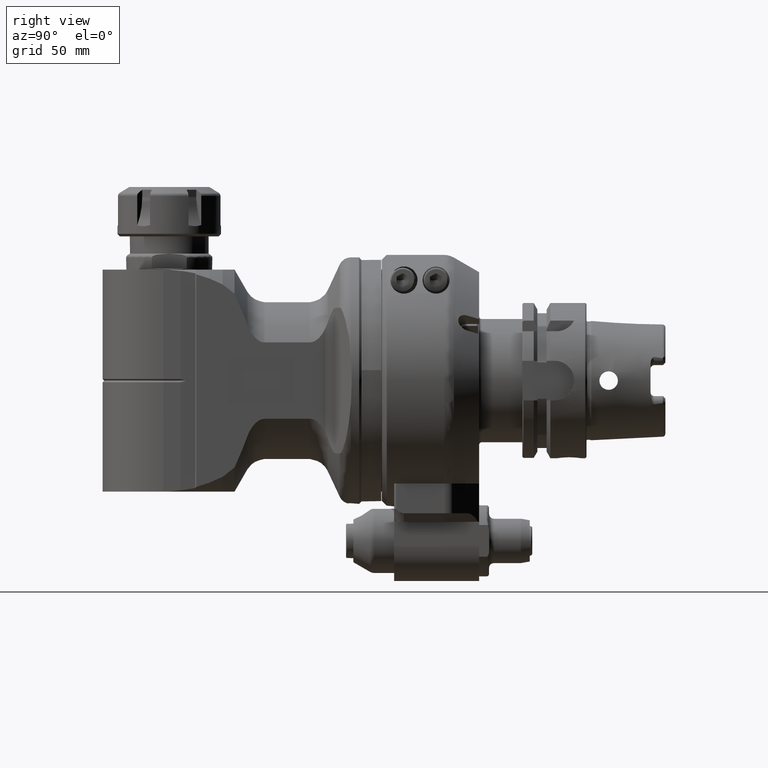
[diagram: clean part render]
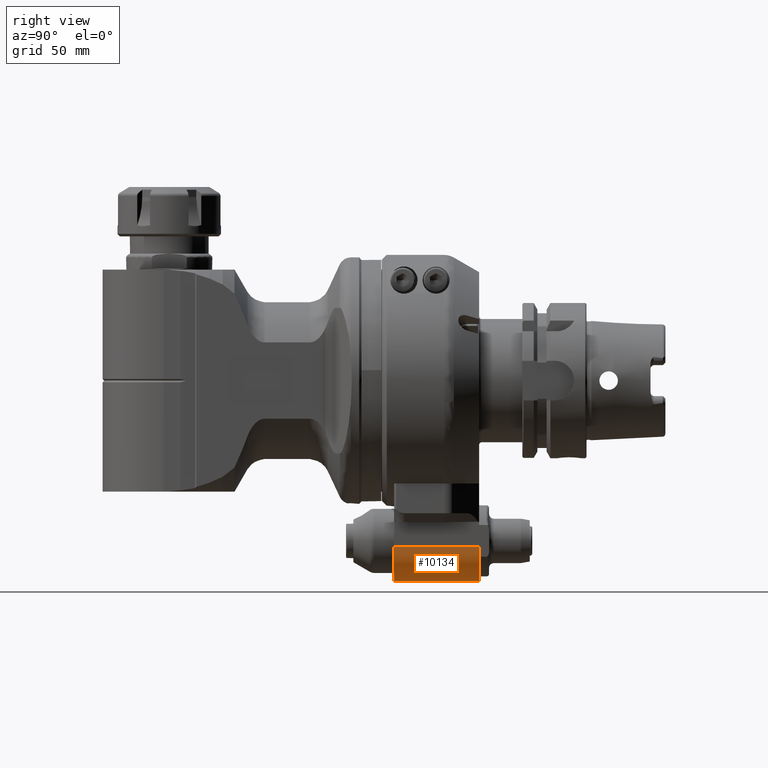
[diagram: same view with one face highlighted and labeled with its STEP entity id]
A machine part, right view. The second image highlights one B-rep face of the part: STEP entity #10134.
In plain terms, the highlighted cylindrical surface (edge-blend (fillet) strip) has radius 14 mm, axis along (-0, 1, -0).
Its self-contained STEP definition (entity closure, byte-faithful):
#784=CYLINDRICAL_SURFACE('',#11363,14.);
#1185=CIRCLE('',#11331,14.);
#1194=CIRCLE('',#11349,14.);
#1731=FACE_OUTER_BOUND('',#2367,.T.);
#2367=EDGE_LOOP('',(#8578,#8579,#8580,#8581));
#3023=LINE('',#18593,#3650);
#3024=LINE('',#18595,#3651);
#3650=VECTOR('',#13841,34.5);
#3651=VECTOR('',#13844,34.5);
#4534=VERTEX_POINT('',#18473);
#4535=VERTEX_POINT('',#18475);
#4560=VERTEX_POINT('',#18553);
#4561=VERTEX_POINT('',#18555);
#5884=EDGE_CURVE('',#4534,#4535,#1185,.T.);
#5921=EDGE_CURVE('',#4560,#4561,#1194,.T.);
#5941=EDGE_CURVE('',#4560,#4535,#3023,.T.);
#5942=EDGE_CURVE('',#4534,#4561,#3024,.T.);
#8578=ORIENTED_EDGE('',*,*,#5942,.T.);
#8579=ORIENTED_EDGE('',*,*,#5921,.F.);
#8580=ORIENTED_EDGE('',*,*,#5941,.T.);
#8581=ORIENTED_EDGE('',*,*,#5884,.F.);
#10134=ADVANCED_FACE('',(#1731),#784,.T.);
#11331=AXIS2_PLACEMENT_3D('',#18476,#13742,#13743);
#11349=AXIS2_PLACEMENT_3D('',#18556,#13802,#13803);
#11363=AXIS2_PLACEMENT_3D('',#18594,#13842,#13843);
#13742=DIRECTION('center_axis',(1.,0.,0.));
#13743=DIRECTION('ref_axis',(0.,1.,0.));
#13802=DIRECTION('center_axis',(-1.,0.,0.));
#13803=DIRECTION('ref_axis',(0.,0.,1.));
#13841=DIRECTION('',(1.,0.,0.));
#13842=DIRECTION('center_axis',(-1.,0.,0.));
#13843=DIRECTION('ref_axis',(0.,-1.,0.));
#13844=DIRECTION('',(-1.,0.,0.));
#18473=CARTESIAN_POINT('',(-17.,81.25,1.));
#18475=CARTESIAN_POINT('',(-17.,67.25,15.));
#18476=CARTESIAN_POINT('Origin',(-17.,67.25,1.));
#18553=CARTESIAN_POINT('',(-51.5,67.25,15.));
#18555=CARTESIAN_POINT('',(-51.5,81.25,1.));
#18556=CARTESIAN_POINT('Origin',(-51.5,67.25,1.));
#18593=CARTESIAN_POINT('',(-51.5,67.25,15.));
#18594=CARTESIAN_POINT('Origin',(-43.,67.25,1.));
#18595=CARTESIAN_POINT('',(-17.,81.25,1.));